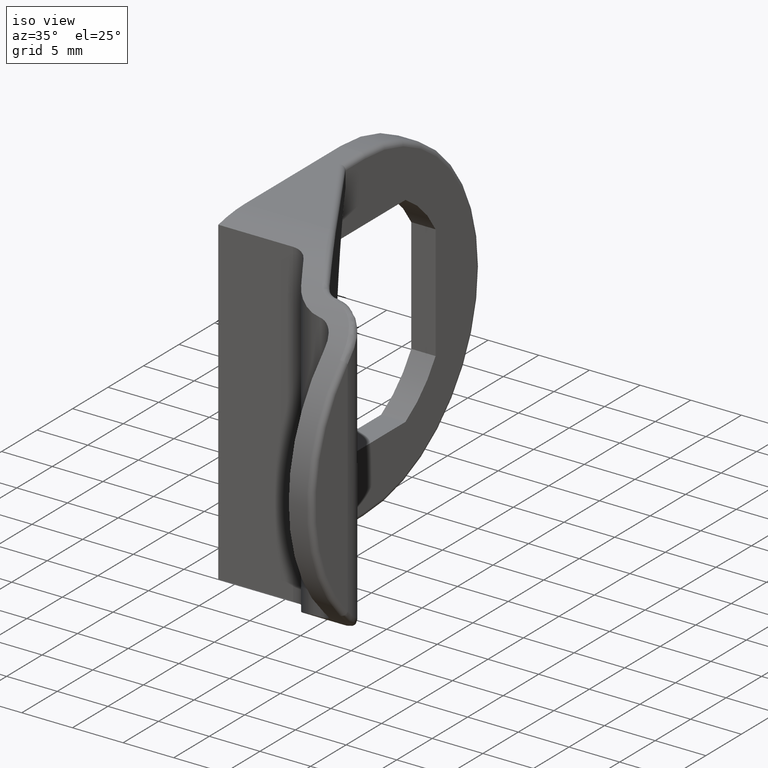
[diagram: clean part render]
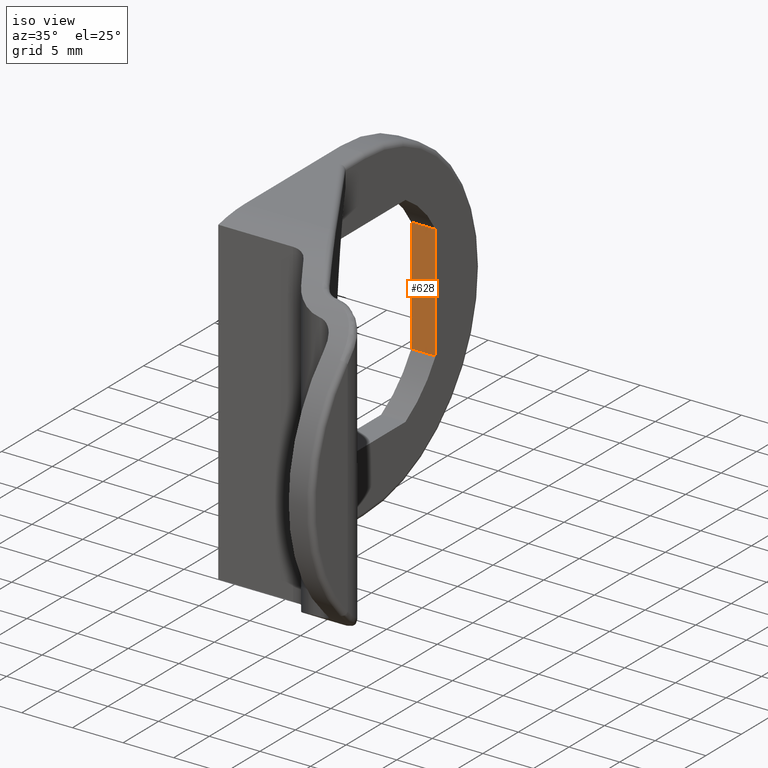
[diagram: same view with one face highlighted and labeled with its STEP entity id]
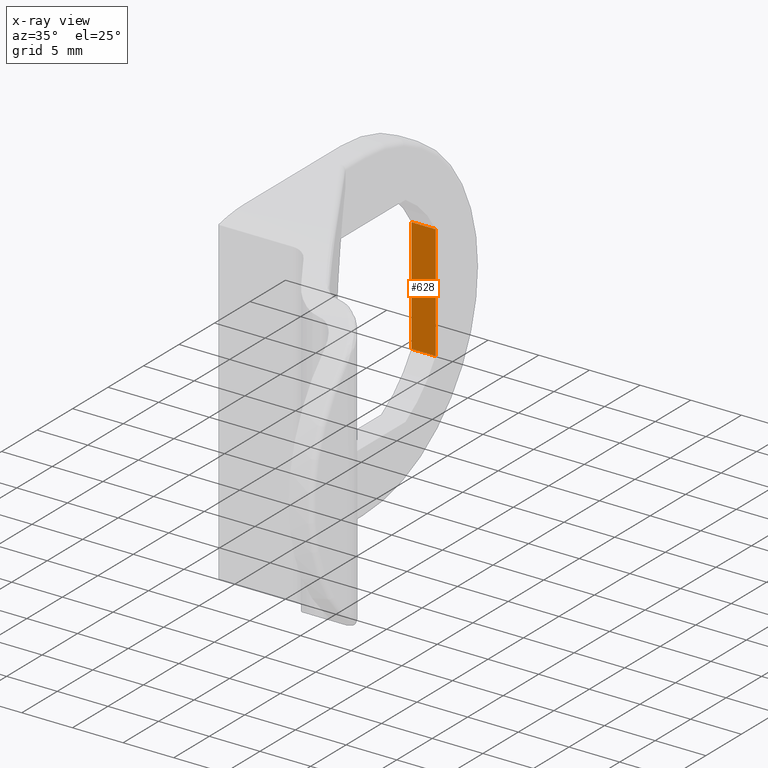
[diagram: x-ray of the same camera — body ghosted, the highlighted face saturated]
A machine part, iso view. The second image highlights one B-rep face of the part: STEP entity #628.
The next image is the same camera in x-ray: the body ghosted, the highlighted face saturated — about 0% of this face is hidden behind the body in this view.
In plain terms, the highlighted planar face has unit normal (-0, 1, 0).
Its self-contained STEP definition (entity closure, byte-faithful):
#25=PLANE('',#690);
#77=FACE_OUTER_BOUND('',#114,.T.);
#114=EDGE_LOOP('',(#491,#492,#493,#494));
#162=LINE('',#1218,#205);
#166=LINE('',#1229,#209);
#167=LINE('',#1232,#210);
#168=LINE('',#1233,#211);
#205=VECTOR('',#818,2.4);
#209=VECTOR('',#828,2.4);
#210=VECTOR('',#833,11.3048662088501);
#211=VECTOR('',#834,11.3048662088501);
#290=VERTEX_POINT('',#1214);
#291=VERTEX_POINT('',#1216);
#294=VERTEX_POINT('',#1226);
#295=VERTEX_POINT('',#1228);
#368=EDGE_CURVE('',#291,#290,#162,.T.);
#373=EDGE_CURVE('',#294,#295,#166,.T.);
#375=EDGE_CURVE('',#290,#294,#167,.T.);
#376=EDGE_CURVE('',#295,#291,#168,.T.);
#491=ORIENTED_EDGE('',*,*,#375,.F.);
#492=ORIENTED_EDGE('',*,*,#368,.F.);
#493=ORIENTED_EDGE('',*,*,#376,.F.);
#494=ORIENTED_EDGE('',*,*,#373,.F.);
#628=ADVANCED_FACE('',(#77),#25,.F.);
#690=AXIS2_PLACEMENT_3D('',#1231,#831,#832);
#818=DIRECTION('',(-1.,-9.48743425660344E-17,0.));
#828=DIRECTION('',(1.,9.48743425660344E-17,0.));
#831=DIRECTION('center_axis',(-9.48743425660344E-17,1.,0.));
#832=DIRECTION('ref_axis',(0.,0.,1.));
#833=DIRECTION('',(0.,0.,1.));
#834=DIRECTION('',(0.,0.,-1.));
#1214=CARTESIAN_POINT('',(0.,9.9,-5.65243310442503));
#1216=CARTESIAN_POINT('',(2.4,9.9,-5.65243310442503));
#1218=CARTESIAN_POINT('',(2.4,9.9,-5.65243310442503));
#1226=CARTESIAN_POINT('',(0.,9.9,5.65243310442503));
#1228=CARTESIAN_POINT('',(2.4,9.9,5.65243310442503));
#1229=CARTESIAN_POINT('',(2.4,9.9,5.65243310442503));
#1231=CARTESIAN_POINT('Origin',(2.4,9.9,5.65243310442503));
#1232=CARTESIAN_POINT('',(0.,9.9,2.82621655221251));
#1233=CARTESIAN_POINT('',(2.4,9.9,2.82621655221251));